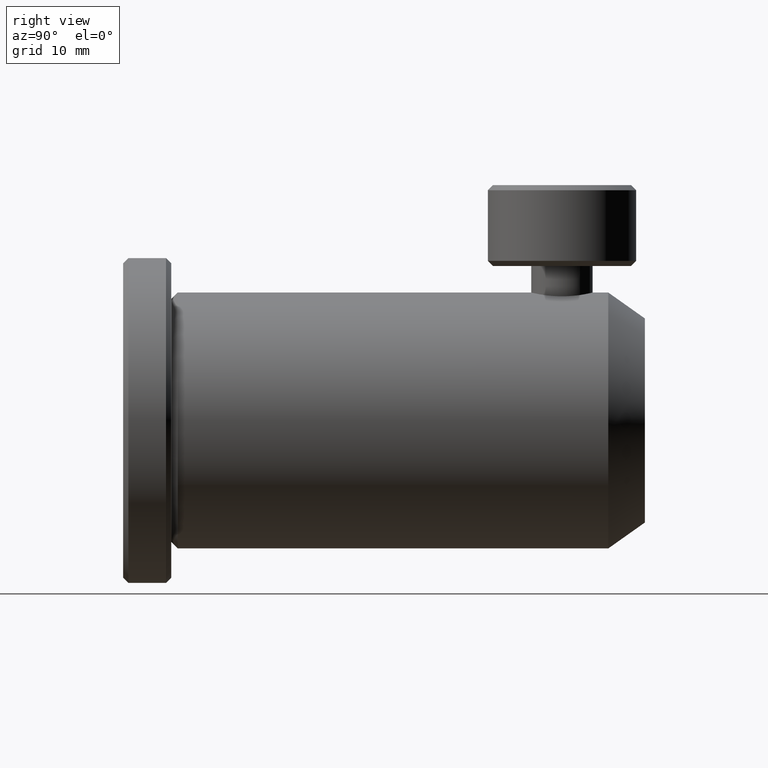
[diagram: clean part render]
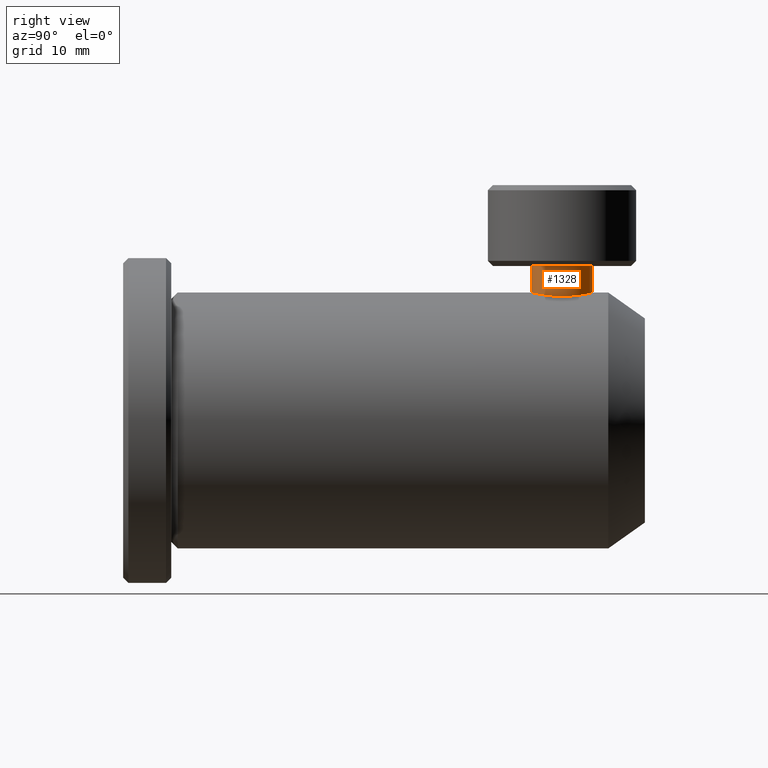
[diagram: same view with one face highlighted and labeled with its STEP entity id]
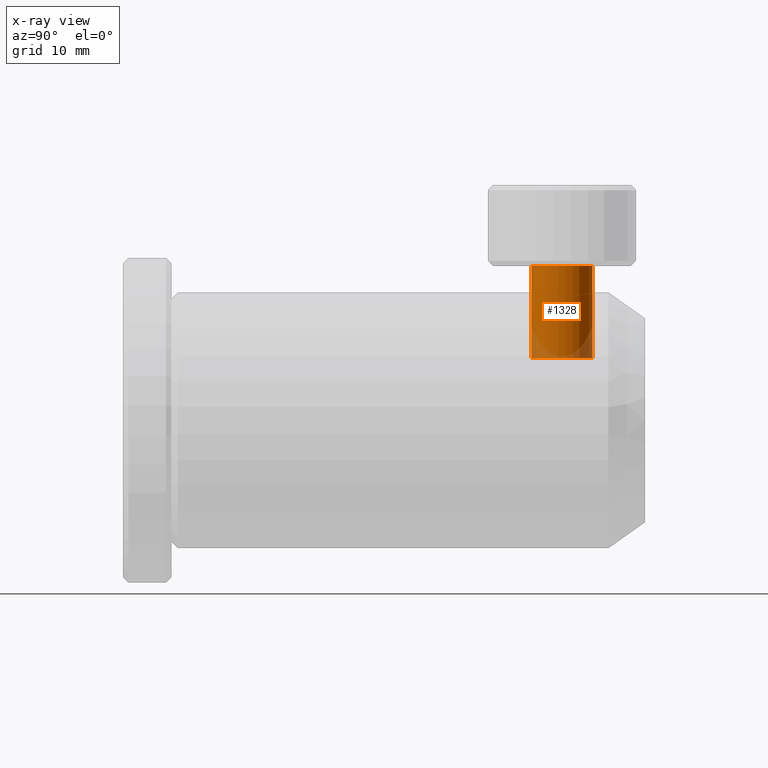
[diagram: x-ray of the same camera — body ghosted, the highlighted face saturated]
A machine part, right view. The second image highlights one B-rep face of the part: STEP entity #1328.
The next image is the same camera in x-ray: the body ghosted, the highlighted face saturated — about 12% of this face is hidden behind the body in this view.
In plain terms, the highlighted cylindrical surface (edge-blend (fillet) strip) has radius 3 mm, axis along (-0, -0, -1).
Its self-contained STEP definition (entity closure, byte-faithful):
#16 = VERTEX_POINT ( 'NONE', #2525 ) ;
#73 = EDGE_CURVE ( 'NONE', #2879, #741, #2223, .T. ) ;
#99 = EDGE_CURVE ( 'NONE', #2879, #16, #2524, .T. ) ;
#122 = VECTOR ( 'NONE', #1686, 1000.000000000000000 ) ;
#287 = DIRECTION ( 'NONE',  ( 0.0000000000000000000, 1.000000000000000000, 0.0000000000000000000 ) ) ;
#315 = CARTESIAN_POINT ( 'NONE',  ( -16.77700000000000100, 23.35116843547333300, 17.95262460249725900 ) ) ;
#335 = VECTOR ( 'NONE', #527, 1000.000000000000000 ) ;
#351 = CARTESIAN_POINT ( 'NONE',  ( -16.77700000000000100, 23.35116843547333700, 24.35262460249726500 ) ) ;
#499 = VERTEX_POINT ( 'NONE', #811 ) ;
#527 = DIRECTION ( 'NONE',  ( -0.0000000000000000000, -3.304235192336777000E-016, -1.000000000000000000 ) ) ;
#660 = ORIENTED_EDGE ( 'NONE', *, *, #99, .F. ) ;
#740 = ORIENTED_EDGE ( 'NONE', *, *, #73, .T. ) ;
#741 = VERTEX_POINT ( 'NONE', #3513 ) ;
#758 = CARTESIAN_POINT ( 'NONE',  ( -16.77700000000000100, 23.35116843547333700, 26.95262460249726300 ) ) ;
#811 = CARTESIAN_POINT ( 'NONE',  ( -16.77700000000000100, 20.35116843547333700, 17.95262460249725900 ) ) ;
#879 = EDGE_LOOP ( 'NONE', ( #740, #2246, #1479, #660 ) ) ;
#932 = DIRECTION ( 'NONE',  ( -0.0000000000000000000, -3.304235192336777000E-016, -1.000000000000000000 ) ) ;
#1160 = CIRCLE ( 'NONE', #2057, 2.999999999999995600 ) ;
#1170 = EDGE_CURVE ( 'NONE', #741, #499, #2469, .T. ) ;
#1183 = EDGE_CURVE ( 'NONE', #16, #499, #1160, .T. ) ;
#1213 = DIRECTION ( 'NONE',  ( 0.0000000000000000000, 1.000000000000000000, 0.0000000000000000000 ) ) ;
#1328 = ADVANCED_FACE ( 'NONE', ( #3258 ), #3352, .T. ) ;
#1445 = CARTESIAN_POINT ( 'NONE',  ( -16.77700000000000100, 20.35116843547334000, 24.35262460249726500 ) ) ;
#1479 = ORIENTED_EDGE ( 'NONE', *, *, #1183, .F. ) ;
#1672 = AXIS2_PLACEMENT_3D ( 'NONE', #351, #932, #1213 ) ;
#1686 = DIRECTION ( 'NONE',  ( -0.0000000000000000000, -3.304235192336777000E-016, -1.000000000000000000 ) ) ;
#1754 = CARTESIAN_POINT ( 'NONE',  ( -16.77700000000000100, 26.35116843547333700, 26.95262460249726300 ) ) ;
#1862 = DIRECTION ( 'NONE',  ( 0.0000000000000000000, 1.000000000000000000, 0.0000000000000000000 ) ) ;
#1898 = DIRECTION ( 'NONE',  ( -0.0000000000000000000, -3.304235192336777000E-016, -1.000000000000000000 ) ) ;
#2057 = AXIS2_PLACEMENT_3D ( 'NONE', #315, #3364, #287 ) ;
#2223 = CIRCLE ( 'NONE', #2548, 2.999999999999999100 ) ;
#2246 = ORIENTED_EDGE ( 'NONE', *, *, #1170, .T. ) ;
#2469 = LINE ( 'NONE', #1445, #122 ) ;
#2524 = LINE ( 'NONE', #3516, #335 ) ;
#2525 = CARTESIAN_POINT ( 'NONE',  ( -16.77700000000000100, 26.35116843547333000, 17.95262460249725900 ) ) ;
#2548 = AXIS2_PLACEMENT_3D ( 'NONE', #758, #1898, #1862 ) ;
#2879 = VERTEX_POINT ( 'NONE', #1754 ) ;
#3258 = FACE_OUTER_BOUND ( 'NONE', #879, .T. ) ;
#3352 = CYLINDRICAL_SURFACE ( 'NONE', #1672, 2.999999999999995600 ) ;
#3364 = DIRECTION ( 'NONE',  ( -0.0000000000000000000, -3.304235192336777000E-016, -1.000000000000000000 ) ) ;
#3513 = CARTESIAN_POINT ( 'NONE',  ( -16.77700000000000100, 20.35116843547333700, 26.95262460249726300 ) ) ;
#3516 = CARTESIAN_POINT ( 'NONE',  ( -16.77700000000000100, 26.35116843547333300, 24.35262460249726500 ) ) ;